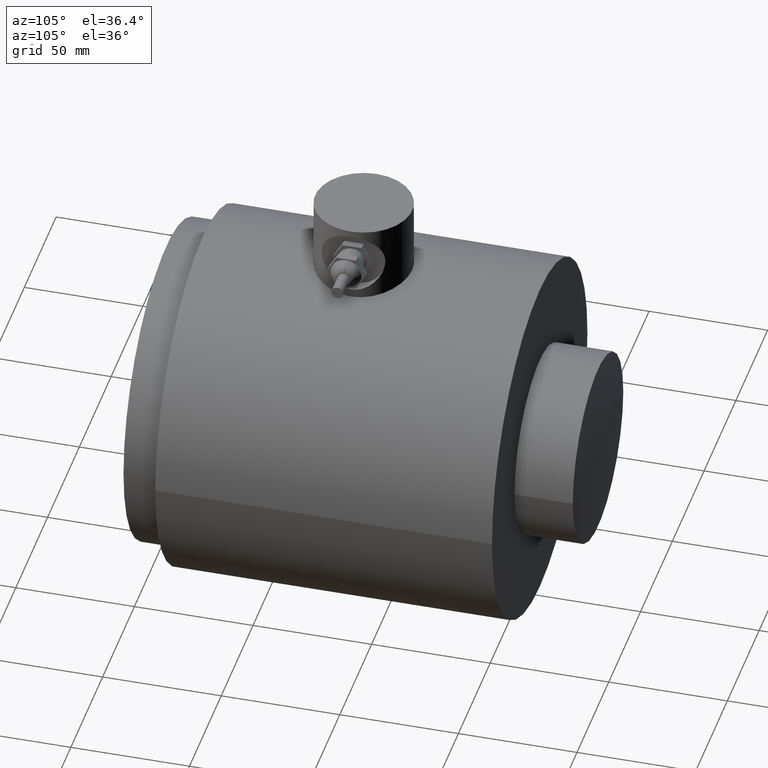
[diagram: clean part render]
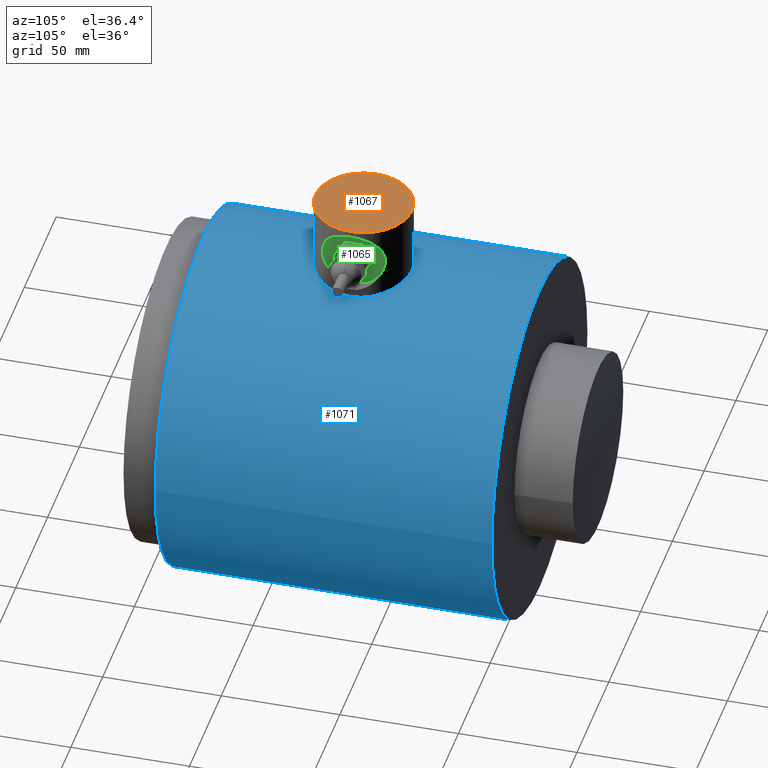
[diagram: same view with three faces highlighted in distinct colors, each labeled with its STEP entity id]
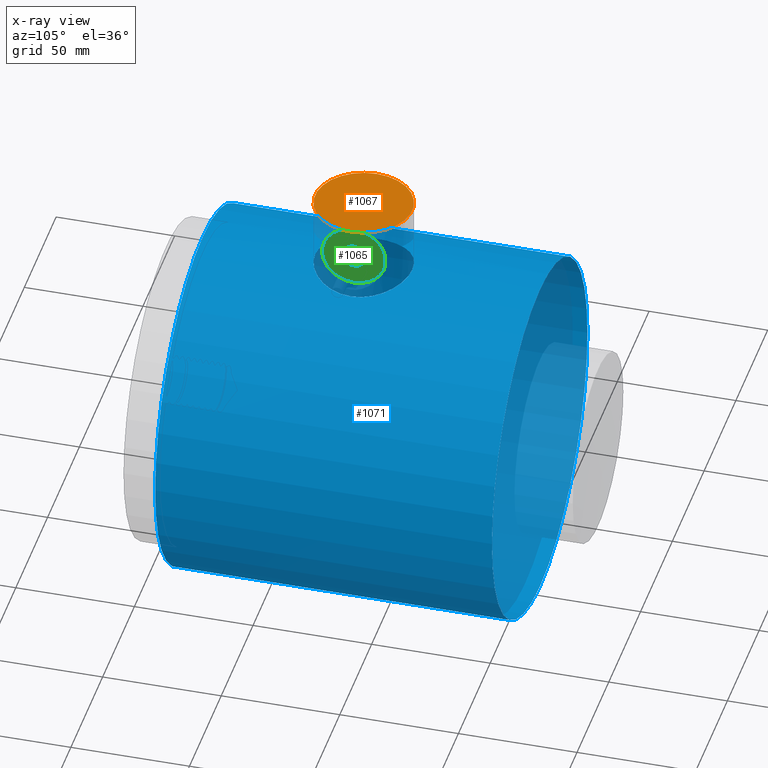
[diagram: x-ray of the same camera — body ghosted, the three highlighted faces saturated]
A machine part, auxiliary view with three faces highlighted in distinct colors.
The next image is the same camera in x-ray (body ghosted, the three faces saturated) — at least one of them is partly hidden behind the body in this view.
Their STEP definitions:

[orange] entity #1067 — the highlighted planar face has unit normal (0, 0, 1).
#113=PLANE('',#1167);
#174=FACE_OUTER_BOUND('',#246,.T.);
#246=EDGE_LOOP('',(#951));
#419=CIRCLE('',#1166,0.807086614173228);
#517=VERTEX_POINT('',#4260);
#663=EDGE_CURVE('',#517,#517,#419,.T.);
#951=ORIENTED_EDGE('',*,*,#663,.T.);
#1067=ADVANCED_FACE('',(#174),#113,.T.);
#1166=AXIS2_PLACEMENT_3D('',#4261,#1402,#1403);
#1167=AXIS2_PLACEMENT_3D('',#4333,#1405,#1406);
#1402=DIRECTION('center_axis',(0.,0.,1.));
#1403=DIRECTION('ref_axis',(1.,0.,0.));
#1405=DIRECTION('center_axis',(0.,0.,1.));
#1406=DIRECTION('ref_axis',(1.,0.,0.));
#4260=CARTESIAN_POINT('',(-0.807086614173228,3.27952755905512,4.13610236220472));
#4261=CARTESIAN_POINT('Origin',(7.27910530162105E-32,3.27952755905512,4.13610236220472));
#4333=CARTESIAN_POINT('Origin',(0.,3.27952755905512,4.13610236220472));

[blue] entity #1071 — the highlighted cylindrical surface (bore or boss wall) has radius 75.057 mm, axis along (0, 1, 0).
#70=B_SPLINE_CURVE_WITH_KNOTS('',3,(#4265,#4266,#4267,#4268,#4269,#4270,
#4271,#4272,#4273,#4274,#4275,#4276,#4277,#4278,#4279,#4280,#4281,#4282,
#4283,#4284,#4285,#4286,#4287,#4288,#4289,#4290,#4291,#4292,#4293,#4294,
#4295,#4296,#4297,#4298),.UNSPECIFIED.,.F.,.F.,(4,2,2,2,2,2,2,2,2,2,2,2,
2,2,2,2,4),(0.,0.388278833398869,0.776557666797739,1.16483650019661,1.55311533359548,
1.9413159045921,2.32951647558872,2.71771704658534,3.10591761758196,3.49411818857859,
3.88231875957521,4.27051933057183,4.65871990156845,5.04699873496732,5.43527756836619,
5.82355640176506,6.21183523516393),.UNSPECIFIED.);
#71=B_SPLINE_CURVE_WITH_KNOTS('',3,(#4299,#4300,#4301,#4302,#4303,#4304,
#4305,#4306,#4307,#4308,#4309,#4310,#4311,#4312,#4313,#4314,#4315,#4316,
#4317,#4318,#4319,#4320,#4321,#4322,#4323,#4324,#4325,#4326,#4327,#4328,
#4329,#4330,#4331,#4332),.UNSPECIFIED.,.F.,.F.,(4,2,2,2,2,2,2,2,2,2,2,2,
2,2,2,2,4),(6.21183523516393,6.6001140685628,6.98839290196167,7.37667173536054,
7.7649505687594,8.15315113975602,8.54135171075265,8.92955228174927,9.31775285274589,
9.70595342374251,10.0941539947391,10.4823545657358,10.8705551367324,11.2588339701312,
11.6471128035301,12.035391636929,12.4236704703279),.UNSPECIFIED.);
#88=FACE_BOUND('',#252,.T.);
#178=FACE_OUTER_BOUND('',#251,.T.);
#251=EDGE_LOOP('',(#959,#960,#961,#962));
#252=EDGE_LOOP('',(#963,#964));
#326=LINE('',#4349,#396);
#396=VECTOR('',#1426,2.955);
#422=CIRCLE('',#1173,2.955);
#424=CIRCLE('',#1176,2.955);
#518=VERTEX_POINT('',#4262);
#519=VERTEX_POINT('',#4264);
#522=VERTEX_POINT('',#4342);
#524=VERTEX_POINT('',#4347);
#665=EDGE_CURVE('',#519,#518,#70,.T.);
#666=EDGE_CURVE('',#518,#519,#71,.T.);
#670=EDGE_CURVE('',#522,#522,#422,.T.);
#672=EDGE_CURVE('',#524,#524,#424,.T.);
#673=EDGE_CURVE('',#524,#522,#326,.T.);
#959=ORIENTED_EDGE('',*,*,#672,.F.);
#960=ORIENTED_EDGE('',*,*,#673,.T.);
#961=ORIENTED_EDGE('',*,*,#670,.T.);
#962=ORIENTED_EDGE('',*,*,#673,.F.);
#963=ORIENTED_EDGE('',*,*,#665,.T.);
#964=ORIENTED_EDGE('',*,*,#666,.T.);
#1008=CYLINDRICAL_SURFACE('',#1175,2.955);
#1071=ADVANCED_FACE('',(#178,#88),#1008,.T.);
#1173=AXIS2_PLACEMENT_3D('',#4343,#1418,#1419);
#1175=AXIS2_PLACEMENT_3D('',#4346,#1422,#1423);
#1176=AXIS2_PLACEMENT_3D('',#4348,#1424,#1425);
#1418=DIRECTION('center_axis',(0.,1.,0.));
#1419=DIRECTION('ref_axis',(-1.,0.,0.));
#1422=DIRECTION('center_axis',(0.,1.,0.));
#1423=DIRECTION('ref_axis',(-1.,0.,0.));
#1424=DIRECTION('center_axis',(0.,1.,0.));
#1425=DIRECTION('ref_axis',(-1.,0.,0.));
#1426=DIRECTION('',(0.,-1.,0.));
#4262=CARTESIAN_POINT('',(-0.807086614173228,3.27952755905512,2.84264598520857));
#4264=CARTESIAN_POINT('',(0.807086614173229,3.27952755905512,2.84264598520857));
#4265=CARTESIAN_POINT('Ctrl Pts',(0.807086614173229,3.27952755905512,2.84264598520857));
#4266=CARTESIAN_POINT('Ctrl Pts',(0.807086614173229,3.22857233157495,2.84264598520857));
#4267=CARTESIAN_POINT('Ctrl Pts',(0.802183284662039,3.17596518079491,2.84405358107829));
#4268=CARTESIAN_POINT('Ctrl Pts',(0.781628797974809,3.07149003679552,2.84977108138661));
#4269=CARTESIAN_POINT('Ctrl Pts',(0.76598301880763,3.01962071032881,2.85407595513006));
#4270=CARTESIAN_POINT('Ctrl Pts',(0.724722393990072,2.92027967480577,2.86483105340367));
#4271=CARTESIAN_POINT('Ctrl Pts',(0.699074781857748,2.87272388903934,2.87127880868704));
#4272=CARTESIAN_POINT('Ctrl Pts',(0.639907458221238,2.78484258695526,2.88504176619003));
#4273=CARTESIAN_POINT('Ctrl Pts',(0.606383201108938,2.74451792439049,2.89234287423253));
#4274=CARTESIAN_POINT('Ctrl Pts',(0.535016827777261,2.67315155105882,2.90639026104041));
#4275=CARTESIAN_POINT('Ctrl Pts',(0.494695534511236,2.63962812324601,2.91363659302528));
#4276=CARTESIAN_POINT('Ctrl Pts',(0.406812207623326,2.58045761433983,2.92720100023748));
#4277=CARTESIAN_POINT('Ctrl Pts',(0.359251030330592,2.55480631618375,2.93350622458203));
#4278=CARTESIAN_POINT('Ctrl Pts',(0.259899370524386,2.51354158981824,2.94397221273453));
#4279=CARTESIAN_POINT('Ctrl Pts',(0.208024975618458,2.49789538335163,2.94813280822357));
#4280=CARTESIAN_POINT('Ctrl Pts',(0.103548378744238,2.47734242964996,2.95364845211226));
#4281=CARTESIAN_POINT('Ctrl Pts',(0.0509449568237036,2.47244094488189,2.955));
#4282=CARTESIAN_POINT('Ctrl Pts',(-0.0509449568237036,2.47244094488189,
2.955));
#4283=CARTESIAN_POINT('Ctrl Pts',(-0.103548378744238,2.47734242964996,2.95364845211226));
#4284=CARTESIAN_POINT('Ctrl Pts',(-0.208024975618458,2.49789538335163,2.94813280822357));
#4285=CARTESIAN_POINT('Ctrl Pts',(-0.259899370524386,2.51354158981824,2.94397221273453));
#4286=CARTESIAN_POINT('Ctrl Pts',(-0.359251030330592,2.55480631618375,2.93350622458203));
#4287=CARTESIAN_POINT('Ctrl Pts',(-0.406812207623326,2.58045761433983,2.92720100023748));
#4288=CARTESIAN_POINT('Ctrl Pts',(-0.494695534511236,2.63962812324601,2.91363659302528));
#4289=CARTESIAN_POINT('Ctrl Pts',(-0.535016827777261,2.67315155105882,2.90639026104041));
#4290=CARTESIAN_POINT('Ctrl Pts',(-0.606383201108938,2.74451792439049,2.89234287423253));
#4291=CARTESIAN_POINT('Ctrl Pts',(-0.639907458221238,2.78484258695526,2.88504176619003));
#4292=CARTESIAN_POINT('Ctrl Pts',(-0.699074781857748,2.87272388903934,2.87127880868704));
#4293=CARTESIAN_POINT('Ctrl Pts',(-0.724722393990072,2.92027967480577,2.86483105340367));
#4294=CARTESIAN_POINT('Ctrl Pts',(-0.76598301880763,3.01962071032881,2.85407595513006));
#4295=CARTESIAN_POINT('Ctrl Pts',(-0.781628797974809,3.07149003679552,2.84977108138661));
#4296=CARTESIAN_POINT('Ctrl Pts',(-0.802183284662039,3.17596518079491,2.84405358107829));
#4297=CARTESIAN_POINT('Ctrl Pts',(-0.807086614173228,3.22857233157495,2.84264598520857));
#4298=CARTESIAN_POINT('Ctrl Pts',(-0.807086614173228,3.27952755905512,2.84264598520857));
#4299=CARTESIAN_POINT('Ctrl Pts',(-0.807086614173228,3.27952755905512,2.84264598520857));
#4300=CARTESIAN_POINT('Ctrl Pts',(-0.807086614173228,3.33048278653528,2.84264598520857));
#4301=CARTESIAN_POINT('Ctrl Pts',(-0.802183284662039,3.38308993731532,2.84405358107829));
#4302=CARTESIAN_POINT('Ctrl Pts',(-0.781628797974809,3.48756508131472,2.84977108138661));
#4303=CARTESIAN_POINT('Ctrl Pts',(-0.765983018807631,3.53943440778143,2.85407595513006));
#4304=CARTESIAN_POINT('Ctrl Pts',(-0.724722393990072,3.63877544330447,2.86483105340367));
#4305=CARTESIAN_POINT('Ctrl Pts',(-0.699074781857749,3.68633122907089,2.87127880868704));
#4306=CARTESIAN_POINT('Ctrl Pts',(-0.639907458221238,3.77421253115497,2.88504176619003));
#4307=CARTESIAN_POINT('Ctrl Pts',(-0.606383201108938,3.81453719371974,2.89234287423253));
#4308=CARTESIAN_POINT('Ctrl Pts',(-0.535016827777261,3.88590356705142,2.90639026104041));
#4309=CARTESIAN_POINT('Ctrl Pts',(-0.494695534511237,3.91942699486422,2.91363659302528));
#4310=CARTESIAN_POINT('Ctrl Pts',(-0.406812207623326,3.9785975037704,2.92720100023748));
#4311=CARTESIAN_POINT('Ctrl Pts',(-0.359251030330592,4.00424880192648,2.93350622458203));
#4312=CARTESIAN_POINT('Ctrl Pts',(-0.259899370524386,4.045513528292,2.94397221273453));
#4313=CARTESIAN_POINT('Ctrl Pts',(-0.208024975618458,4.0611597347586,2.94813280822357));
#4314=CARTESIAN_POINT('Ctrl Pts',(-0.103548378744239,4.08171268846027,2.95364845211226));
#4315=CARTESIAN_POINT('Ctrl Pts',(-0.0509449568237038,4.08661417322835,
2.955));
#4316=CARTESIAN_POINT('Ctrl Pts',(0.0509449568237035,4.08661417322835,2.955));
#4317=CARTESIAN_POINT('Ctrl Pts',(0.103548378744239,4.08171268846027,2.95364845211226));
#4318=CARTESIAN_POINT('Ctrl Pts',(0.208024975618458,4.0611597347586,2.94813280822357));
#4319=CARTESIAN_POINT('Ctrl Pts',(0.259899370524385,4.045513528292,2.94397221273453));
#4320=CARTESIAN_POINT('Ctrl Pts',(0.359251030330591,4.00424880192648,2.93350622458203));
#4321=CARTESIAN_POINT('Ctrl Pts',(0.406812207623326,3.9785975037704,2.92720100023748));
#4322=CARTESIAN_POINT('Ctrl Pts',(0.494695534511236,3.91942699486422,2.91363659302528));
#4323=CARTESIAN_POINT('Ctrl Pts',(0.535016827777261,3.88590356705142,2.90639026104041));
#4324=CARTESIAN_POINT('Ctrl Pts',(0.606383201108938,3.81453719371974,2.89234287423253));
#4325=CARTESIAN_POINT('Ctrl Pts',(0.639907458221237,3.77421253115497,2.88504176619003));
#4326=CARTESIAN_POINT('Ctrl Pts',(0.699074781857748,3.68633122907089,2.87127880868704));
#4327=CARTESIAN_POINT('Ctrl Pts',(0.724722393990072,3.63877544330447,2.86483105340367));
#4328=CARTESIAN_POINT('Ctrl Pts',(0.76598301880763,3.53943440778143,2.85407595513006));
#4329=CARTESIAN_POINT('Ctrl Pts',(0.781628797974809,3.48756508131472,2.84977108138661));
#4330=CARTESIAN_POINT('Ctrl Pts',(0.802183284662039,3.38308993731533,2.84405358107829));
#4331=CARTESIAN_POINT('Ctrl Pts',(0.807086614173228,3.33048278653528,2.84264598520857));
#4332=CARTESIAN_POINT('Ctrl Pts',(0.807086614173228,3.27952755905512,2.84264598520857));
#4342=CARTESIAN_POINT('',(2.955,0.610236220472441,-3.61883129148043E-16));
#4343=CARTESIAN_POINT('Origin',(0.,0.610236220472441,0.));
#4346=CARTESIAN_POINT('Origin',(0.,0.610236220472441,0.));
#4347=CARTESIAN_POINT('',(2.955,6.2007874015748,-3.61883129148043E-16));
#4348=CARTESIAN_POINT('Origin',(0.,6.2007874015748,0.));
#4349=CARTESIAN_POINT('',(2.955,0.610236220472441,-3.61883129148043E-16));

[green] entity #1065 — the highlighted planar face has unit normal (1, 0, 0).
#85=FACE_BOUND('',#243,.T.);
#112=PLANE('',#1164);
#172=FACE_OUTER_BOUND('',#242,.T.);
#242=EDGE_LOOP('',(#941));
#243=EDGE_LOOP('',(#942,#943));
#416=CIRCLE('',#1160,0.196850393700787);
#417=CIRCLE('',#1161,0.196850393700787);
#418=CIRCLE('',#1163,0.523622047244094);
#512=VERTEX_POINT('',#4194);
#513=VERTEX_POINT('',#4195);
#516=VERTEX_POINT('',#4228);
#656=EDGE_CURVE('',#512,#513,#416,.T.);
#657=EDGE_CURVE('',#513,#512,#417,.T.);
#661=EDGE_CURVE('',#516,#516,#418,.T.);
#941=ORIENTED_EDGE('',*,*,#661,.F.);
#942=ORIENTED_EDGE('',*,*,#656,.T.);
#943=ORIENTED_EDGE('',*,*,#657,.T.);
#1065=ADVANCED_FACE('',(#172,#85),#112,.T.);
#1160=AXIS2_PLACEMENT_3D('',#4196,#1388,#1389);
#1161=AXIS2_PLACEMENT_3D('',#4197,#1390,#1391);
#1163=AXIS2_PLACEMENT_3D('',#4230,#1396,#1397);
#1164=AXIS2_PLACEMENT_3D('',#4258,#1398,#1399);
#1388=DIRECTION('center_axis',(-1.,0.,0.));
#1389=DIRECTION('ref_axis',(0.,1.,0.));
#1390=DIRECTION('center_axis',(-1.,0.,0.));
#1391=DIRECTION('ref_axis',(0.,1.,0.));
#1396=DIRECTION('center_axis',(-1.,0.,0.));
#1397=DIRECTION('ref_axis',(0.,0.,-1.));
#1398=DIRECTION('center_axis',(1.,0.,0.));
#1399=DIRECTION('ref_axis',(0.,0.,-1.));
#4194=CARTESIAN_POINT('',(0.610236220472441,3.47637795275591,3.5061811023622));
#4195=CARTESIAN_POINT('',(0.610236220472441,3.08267716535433,3.5061811023622));
#4196=CARTESIAN_POINT('Origin',(0.610236220472441,3.27952755905512,3.5061811023622));
#4197=CARTESIAN_POINT('Origin',(0.610236220472441,3.27952755905512,3.5061811023622));
#4228=CARTESIAN_POINT('',(0.610236220472441,3.27952755905512,4.0298031496063));
#4230=CARTESIAN_POINT('Origin',(0.610236220472441,3.27952755905512,3.5061811023622));
#4258=CARTESIAN_POINT('Origin',(0.610236220472441,3.27952755905512,3.5061811023622));